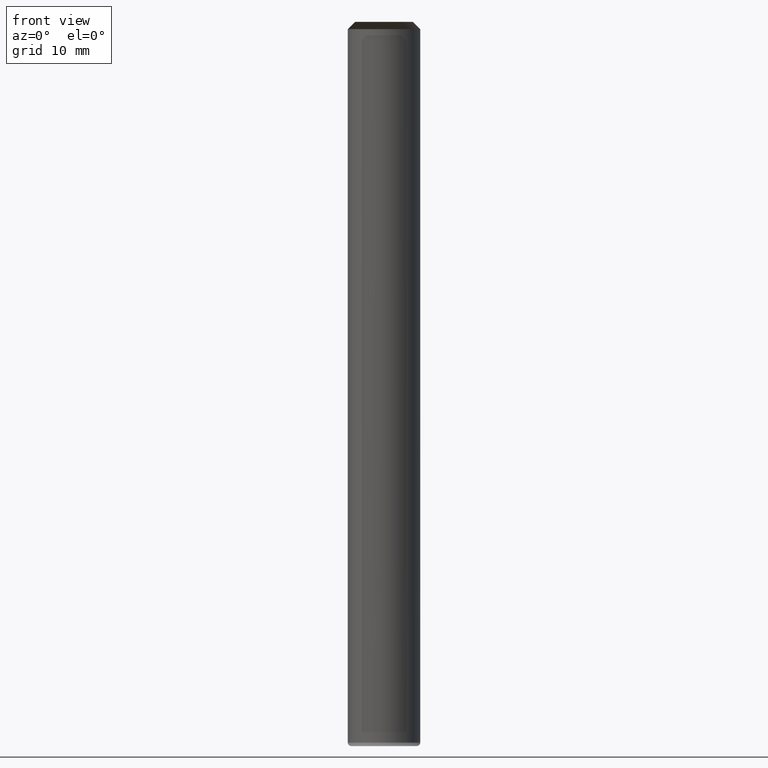
[diagram: clean part render]
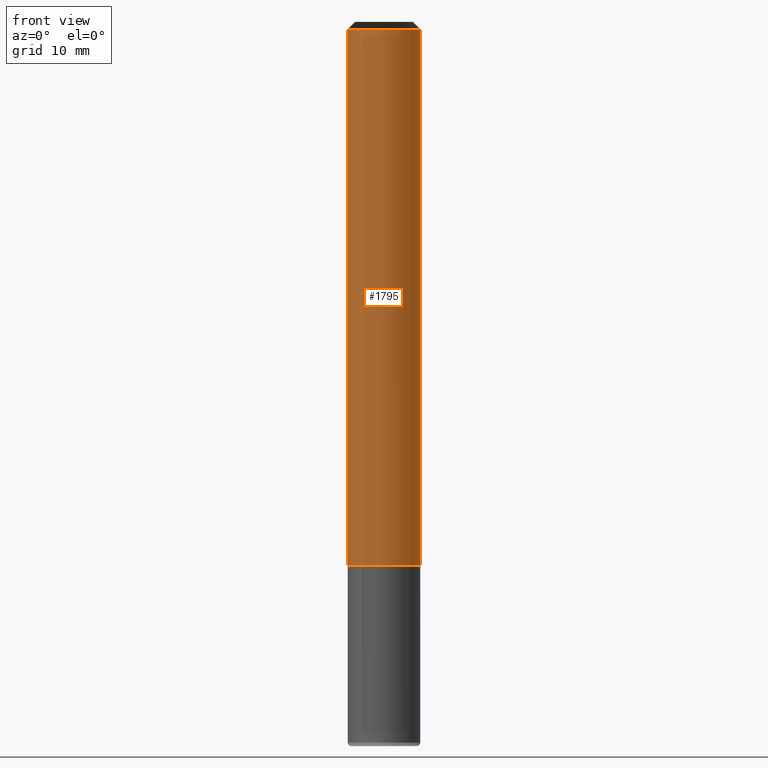
[diagram: same view with one face highlighted and labeled with its STEP entity id]
A machine part, front view. The second image highlights one B-rep face of the part: STEP entity #1795.
In plain terms, the highlighted face is a freeform B-spline surface patch.
Its self-contained STEP definition (entity closure, byte-faithful):
#1490=CARTESIAN_POINT('',(3.0,0.0,0.0));
#1494=CARTESIAN_POINT('',(-3.0,0.0,0.0));
#1511=CARTESIAN_POINT('',(-3.0,-3.0,0.0));
#1512=CARTESIAN_POINT('',(0.0,-3.0,0.0));
#1513=CARTESIAN_POINT('',(3.0,-3.0,0.0));
#1514=CARTESIAN_POINT('',(3.0,0.0,44.4));
#1518=CARTESIAN_POINT('',(-3.0,0.0,44.4));
#1525=CARTESIAN_POINT('',(-3.0,-3.0,44.4));
#1526=CARTESIAN_POINT('',(0.0,-3.0,44.4));
#1527=CARTESIAN_POINT('',(3.0,-3.0,44.4));
#1776=(
BOUNDED_SURFACE()
B_SPLINE_SURFACE(1,2,(
(#1494,#1511,#1512,#1513,#1490),
(#1518,#1525,#1526,#1527,#1514)
), .UNSPECIFIED.,.F.,.F.,.F.)
B_SPLINE_SURFACE_WITH_KNOTS((2,2),(3,2,3),(
0.0,1.0),(
0.0,0.5,1.0), .UNSPECIFIED.)
GEOMETRIC_REPRESENTATION_ITEM()
RATIONAL_B_SPLINE_SURFACE(((1.0,0.707106781187,1.0,0.707106781187,1.0),
(1.0,0.707106781187,1.0,0.707106781187,1.0)
))
REPRESENTATION_ITEM('')
SURFACE()
);
#1777=(
BOUNDED_CURVE()
B_SPLINE_CURVE(1,(#1518,#1494),.UNSPECIFIED.,.F.,.F.)
B_SPLINE_CURVE_WITH_KNOTS((2,2),
(0.0,1.0),.UNSPECIFIED.)
CURVE()
GEOMETRIC_REPRESENTATION_ITEM()
RATIONAL_B_SPLINE_CURVE((1.0,1.0))
REPRESENTATION_ITEM('')
);
#1778=(
BOUNDED_CURVE()
B_SPLINE_CURVE(2,(#1494,#1511,#1512,#1513,#1490),.UNSPECIFIED.,.F.,.F.)
B_SPLINE_CURVE_WITH_KNOTS((3,2,3),
(0.0,0.5,1.0),.UNSPECIFIED.)
CURVE()
GEOMETRIC_REPRESENTATION_ITEM()
RATIONAL_B_SPLINE_CURVE((1.0,0.707106781187,1.0,0.707106781187,1.0))
REPRESENTATION_ITEM('')
);
#1779=(
BOUNDED_CURVE()
B_SPLINE_CURVE(1,(#1490,#1514),.UNSPECIFIED.,.F.,.F.)
B_SPLINE_CURVE_WITH_KNOTS((2,2),
(0.0,1.0),.UNSPECIFIED.)
CURVE()
GEOMETRIC_REPRESENTATION_ITEM()
RATIONAL_B_SPLINE_CURVE((1.0,1.0))
REPRESENTATION_ITEM('')
);
#1780=(
BOUNDED_CURVE()
B_SPLINE_CURVE(2,(#1514,#1527,#1526,#1525,#1518),.UNSPECIFIED.,.F.,.F.)
B_SPLINE_CURVE_WITH_KNOTS((3,2,3),
(0.0,0.5,1.0),.UNSPECIFIED.)
CURVE()
GEOMETRIC_REPRESENTATION_ITEM()
RATIONAL_B_SPLINE_CURVE((1.0,0.707106781187,1.0,0.707106781187,1.0))
REPRESENTATION_ITEM('')
);
#1781=VERTEX_POINT('',#1490);
#1782=VERTEX_POINT('',#1494);
#1783=VERTEX_POINT('',#1514);
#1784=VERTEX_POINT('',#1518);
#1785=EDGE_CURVE('',#1784,#1782,#1777,.T.);
#1786=EDGE_CURVE('',#1782,#1781,#1778,.T.);
#1787=EDGE_CURVE('',#1781,#1783,#1779,.T.);
#1788=EDGE_CURVE('',#1783,#1784,#1780,.T.);
#1789=ORIENTED_EDGE('',*,*,#1785,.T.);
#1790=ORIENTED_EDGE('',*,*,#1786,.T.);
#1791=ORIENTED_EDGE('',*,*,#1787,.T.);
#1792=ORIENTED_EDGE('',*,*,#1788,.T.);
#1793=EDGE_LOOP('',(#1789,#1790,#1791,#1792));
#1794=FACE_OUTER_BOUND('',#1793,.T.);
#1795=ADVANCED_FACE('',(#1794),#1776,.T.);